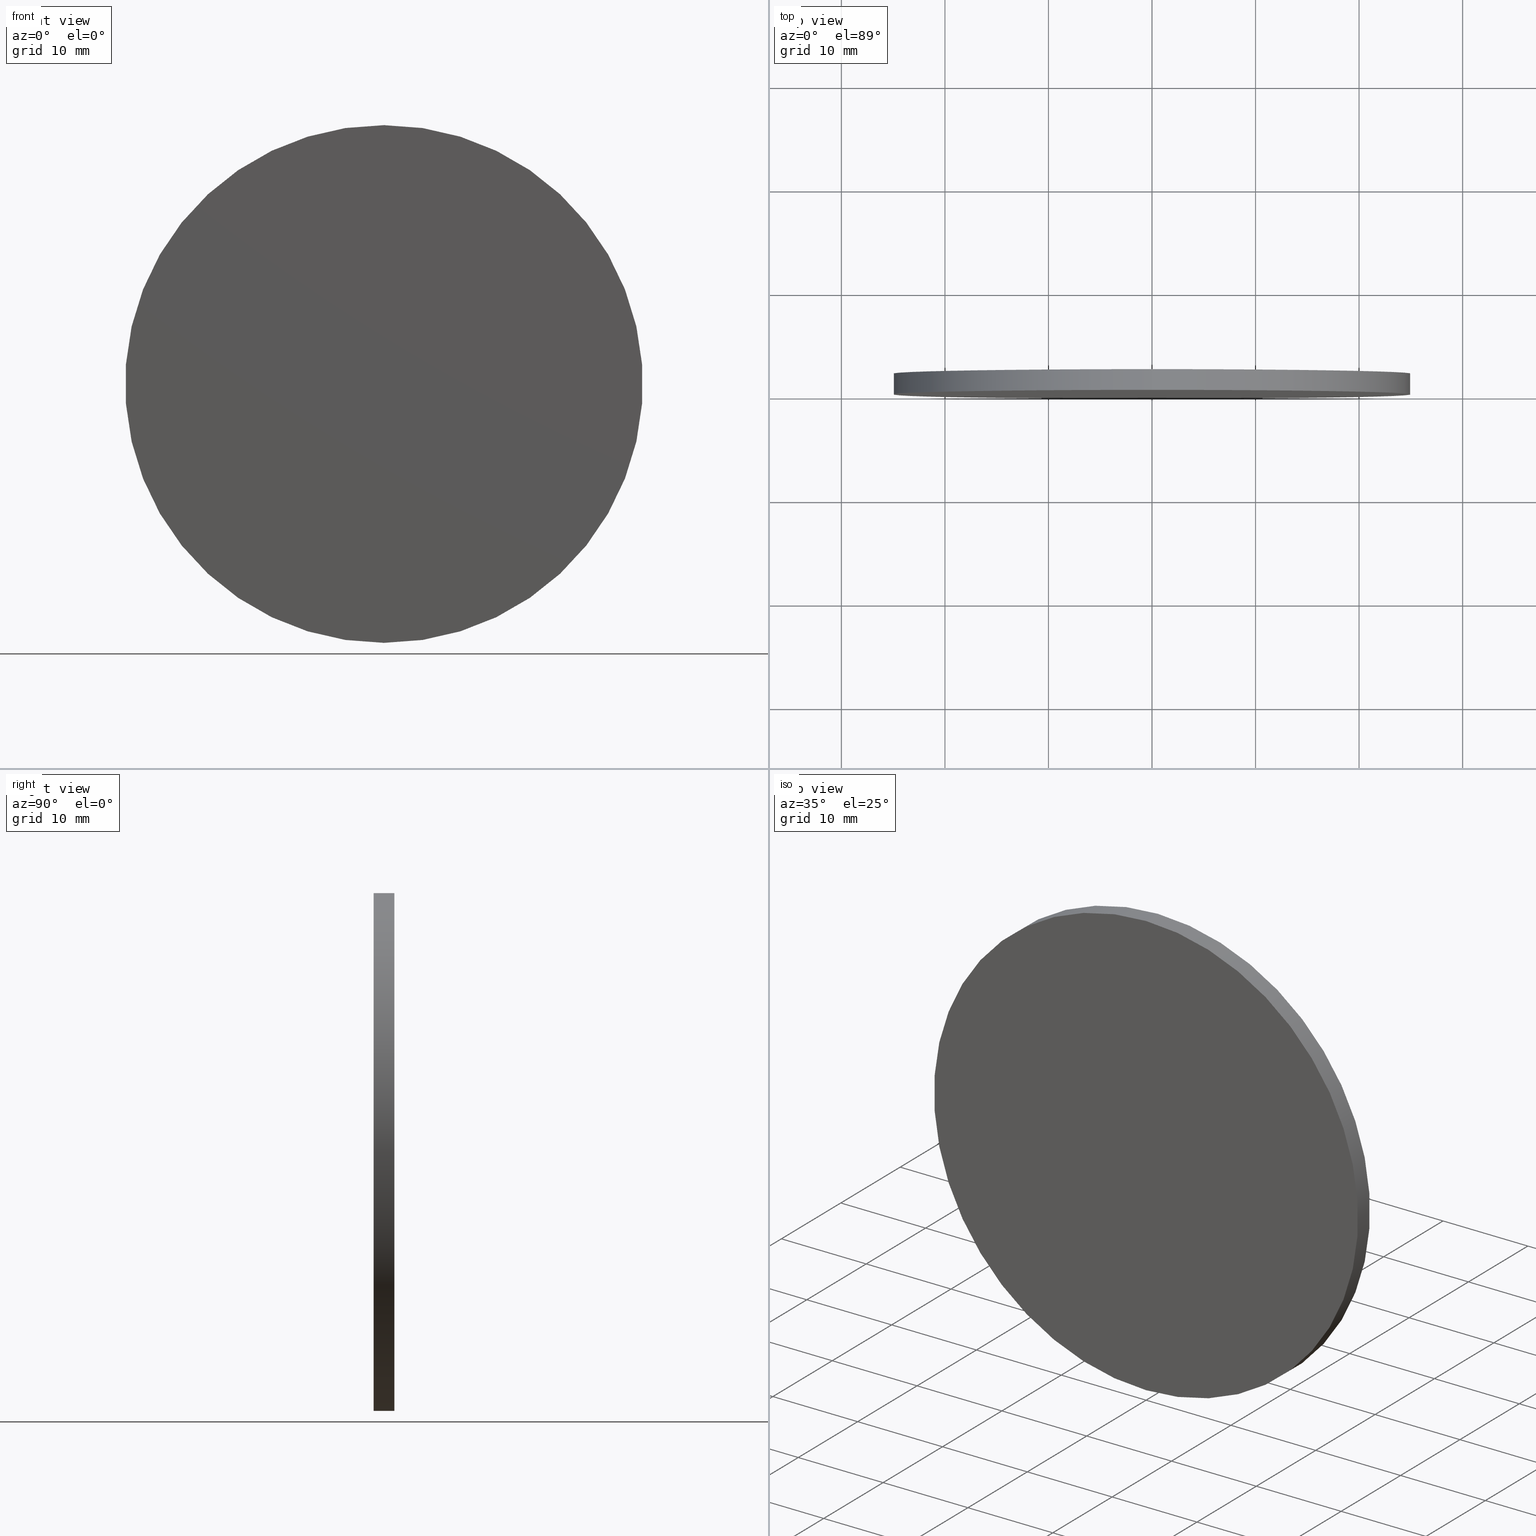
[diagram: canonical four-view strip — front | top / right | iso, engineering-drawing reading convention]
A machine part, canonical four-view strip (front | top / right | iso — engineering-drawing reading convention). The complete STEP part file that produces these views, byte-faithful:
ISO-10303-21;
HEADER;
FILE_DESCRIPTION (( 'STEP AP214' ),
    '1' );
FILE_NAME ('208558.STEP',
    '2019-07-25T01:54:44',
    ( 'user' ),
    ( '΢���й�' ),
    'SwSTEP 2.0',
    'SolidWorks 2016',
    '' );
FILE_SCHEMA (( 'AUTOMOTIVE_DESIGN' ));
ENDSEC;

DATA;
#1 = DIRECTION ( 'NONE',  ( 0.0000000000000000000, 1.000000000000000000, 0.0000000000000000000 ) ) ;
#2 = EDGE_CURVE ( 'NONE', #63, #132, #8, .T. ) ;
#3 = DIRECTION ( 'NONE',  ( 0.0000000000000000000, 1.000000000000000000, 0.0000000000000000000 ) ) ;
#4 = APPLICATION_CONTEXT ( 'automotive_design' ) ;
#5 =( GEOMETRIC_REPRESENTATION_CONTEXT ( 3 ) GLOBAL_UNCERTAINTY_ASSIGNED_CONTEXT ( ( #43 ) ) GLOBAL_UNIT_ASSIGNED_CONTEXT ( ( #118, #107, #41 ) ) REPRESENTATION_CONTEXT ( 'NONE', 'WORKASPACE' ) );
#6 = FACE_OUTER_BOUND ( 'NONE', #15, .T. ) ;
#7 = AXIS2_PLACEMENT_3D ( 'NONE', #38, #114, #99 ) ;
#8 = CIRCLE ( 'NONE', #117, 25.00000000000000000 ) ;
#9 = ADVANCED_BREP_SHAPE_REPRESENTATION ( '208558', ( #74, #44 ), #130 ) ;
#10 = CARTESIAN_POINT ( 'NONE',  ( 3.061616997868383000E-015, 2.000000000000000000, 25.00000000000000000 ) ) ;
#11 = DIRECTION ( 'NONE',  ( 0.0000000000000000000, 0.0000000000000000000, 1.000000000000000000 ) ) ;
#12 = SURFACE_STYLE_USAGE ( .BOTH. , #78 ) ;
#13 = DIRECTION ( 'NONE',  ( -0.0000000000000000000, -1.000000000000000000, -0.0000000000000000000 ) ) ;
#14 = EDGE_LOOP ( 'NONE', ( #16, #61, #79, #96 ) ) ;
#15 = EDGE_LOOP ( 'NONE', ( #42, #98 ) ) ;
#16 = ORIENTED_EDGE ( 'NONE', *, *, #134, .F. ) ;
#17 = CARTESIAN_POINT ( 'NONE',  ( 0.0000000000000000000, 0.0000000000000000000, 0.0000000000000000000 ) ) ;
#18 = FILL_AREA_STYLE ('',( #26 ) ) ;
#19 = CARTESIAN_POINT ( 'NONE',  ( 3.061616997868383000E-015, 0.0000000000000000000, 25.00000000000000000 ) ) ;
#20 = EDGE_LOOP ( 'NONE', ( #135, #37, #93, #105 ) ) ;
#21 = PRODUCT_DEFINITION ( 'δ֪', '', #53, #73 ) ;
#22 = AXIS2_PLACEMENT_3D ( 'NONE', #30, #103, #27 ) ;
#23 = CLOSED_SHELL ( 'NONE', ( #72, #29, #68, #33 ) ) ;
#24 = COLOUR_RGB ( '',1.000000000000000000, 1.000000000000000000, 1.000000000000000000 ) ;
#25 = PRODUCT_RELATED_PRODUCT_CATEGORY ( 'part', '', ( #35 ) ) ;
#26 = FILL_AREA_STYLE_COLOUR ( '', #24 ) ;
#27 = DIRECTION ( 'NONE',  ( 0.0000000000000000000, -0.0000000000000000000, 1.000000000000000000 ) ) ;
#28 = CARTESIAN_POINT ( 'NONE',  ( 0.0000000000000000000, 2.000000000000000000, 0.0000000000000000000 ) ) ;
#29 = ADVANCED_FACE ( 'NONE', ( #120 ), #121, .T. ) ;
#30 = CARTESIAN_POINT ( 'NONE',  ( 0.0000000000000000000, 2.000000000000000000, 0.0000000000000000000 ) ) ;
#31 = COLOUR_RGB ( '',1.000000000000000000, 1.000000000000000000, 1.000000000000000000 ) ;
#32 = LINE ( 'NONE', #128, #113 ) ;
#33 = ADVANCED_FACE ( 'NONE', ( #137 ), #101, .F. ) ;
#34 = EDGE_CURVE ( 'NONE', #125, #111, #59, .T. ) ;
#35 = PRODUCT ( '208558', '208558', '', ( #58 ) ) ;
#36 = PRODUCT_DEFINITION_SHAPE ( 'NONE', 'NONE',  #21 ) ;
#37 = ORIENTED_EDGE ( 'NONE', *, *, #134, .T. ) ;
#38 = CARTESIAN_POINT ( 'NONE',  ( 0.0000000000000000000, 0.0000000000000000000, 0.0000000000000000000 ) ) ;
#39 = CARTESIAN_POINT ( 'NONE',  ( 0.0000000000000000000, 0.0000000000000000000, 0.0000000000000000000 ) ) ;
#40 =( NAMED_UNIT ( * ) PLANE_ANGLE_UNIT ( ) SI_UNIT ( $, .RADIAN. ) );
#41 =( NAMED_UNIT ( * ) SI_UNIT ( $, .STERADIAN. ) SOLID_ANGLE_UNIT ( ) );
#42 = ORIENTED_EDGE ( 'NONE', *, *, #34, .T. ) ;
#43 = UNCERTAINTY_MEASURE_WITH_UNIT (LENGTH_MEASURE( 1.000000000000000100E-005 ), #118, 'distance_accuracy_value', 'NONE');
#44 = AXIS2_PLACEMENT_3D ( 'NONE', #39, #50, #131 ) ;
#45 = ORIENTED_EDGE ( 'NONE', *, *, #2, .F. ) ;
#46 = DIRECTION ( 'NONE',  ( -0.0000000000000000000, -1.000000000000000000, -0.0000000000000000000 ) ) ;
#47 = DIRECTION ( 'NONE',  ( -0.0000000000000000000, -1.000000000000000000, -0.0000000000000000000 ) ) ;
#48 =( LENGTH_UNIT ( ) NAMED_UNIT ( * ) SI_UNIT ( .MILLI., .METRE. ) );
#49 = DIRECTION ( 'NONE',  ( 0.0000000000000000000, 0.0000000000000000000, -1.000000000000000000 ) ) ;
#50 = DIRECTION ( 'NONE',  ( 0.0000000000000000000, 0.0000000000000000000, 1.000000000000000000 ) ) ;
#51 = CYLINDRICAL_SURFACE ( 'NONE', #112, 25.00000000000000000 ) ;
#52 = MECHANICAL_DESIGN_GEOMETRIC_PRESENTATION_REPRESENTATION (  '', ( #106 ), #5 ) ;
#53 = PRODUCT_DEFINITION_FORMATION_WITH_SPECIFIED_SOURCE ( '�κ�', '', #35, .NOT_KNOWN. ) ;
#54 = PRESENTATION_LAYER_ASSIGNMENT (  '', '', ( #62 ) ) ;
#55 = SURFACE_STYLE_USAGE ( .BOTH. , #127 ) ;
#56 = DIRECTION ( 'NONE',  ( 0.0000000000000000000, -0.0000000000000000000, 1.000000000000000000 ) ) ;
#57 =( LENGTH_UNIT ( ) NAMED_UNIT ( * ) SI_UNIT ( .MILLI., .METRE. ) );
#58 = PRODUCT_CONTEXT ( 'NONE', #92, 'mechanical' ) ;
#59 = CIRCLE ( 'NONE', #109, 25.00000000000000000 ) ;
#60 = EDGE_CURVE ( 'NONE', #125, #132, #32, .T. ) ;
#61 = ORIENTED_EDGE ( 'NONE', *, *, #34, .F. ) ;
#62 = STYLED_ITEM ( 'NONE', ( #110 ), #74 ) ;
#63 = VERTEX_POINT ( 'NONE', #19 ) ;
#64 = CARTESIAN_POINT ( 'NONE',  ( 0.0000000000000000000, 2.000000000000000000, 0.0000000000000000000 ) ) ;
#65 = DIRECTION ( 'NONE',  ( 0.0000000000000000000, 0.0000000000000000000, 1.000000000000000000 ) ) ;
#66 = FILL_AREA_STYLE_COLOUR ( '', #31 ) ;
#67 = AXIS2_PLACEMENT_3D ( 'NONE', #126, #75, #65 ) ;
#68 = ADVANCED_FACE ( 'NONE', ( #6 ), #80, .T. ) ;
#69 = DIRECTION ( 'NONE',  ( 0.0000000000000000000, 0.0000000000000000000, 1.000000000000000000 ) ) ;
#70 = APPLICATION_PROTOCOL_DEFINITION ( 'draft international standard', 'automotive_design', 1998, #4 ) ;
#71 = CIRCLE ( 'NONE', #67, 25.00000000000000000 ) ;
#72 = ADVANCED_FACE ( 'NONE', ( #86 ), #51, .T. ) ;
#73 = PRODUCT_DEFINITION_CONTEXT ( 'detailed design', #4, 'design' ) ;
#74 = MANIFOLD_SOLID_BREP ( '͹̨-����1', #23 ) ;
#75 = DIRECTION ( 'NONE',  ( 0.0000000000000000000, 1.000000000000000000, 0.0000000000000000000 ) ) ;
#76 = SURFACE_STYLE_FILL_AREA ( #140 ) ;
#77 = DIRECTION ( 'NONE',  ( 0.0000000000000000000, 1.000000000000000000, 0.0000000000000000000 ) ) ;
#78 = SURFACE_SIDE_STYLE ('',( #136 ) ) ;
#79 = ORIENTED_EDGE ( 'NONE', *, *, #60, .T. ) ;
#80 = PLANE ( 'NONE',  #22 ) ;
#81 = CIRCLE ( 'NONE', #7, 25.00000000000000000 ) ;
#82 = AXIS2_PLACEMENT_3D ( 'NONE', #91, #1, #56 ) ;
#83 = ORIENTED_EDGE ( 'NONE', *, *, #94, .F. ) ;
#84 = PRESENTATION_STYLE_ASSIGNMENT (( #12 ) ) ;
#85 =( GEOMETRIC_REPRESENTATION_CONTEXT ( 3 ) GLOBAL_UNCERTAINTY_ASSIGNED_CONTEXT ( ( #122 ) ) GLOBAL_UNIT_ASSIGNED_CONTEXT ( ( #48, #40, #129 ) ) REPRESENTATION_CONTEXT ( 'NONE', 'WORKASPACE' ) );
#86 = FACE_OUTER_BOUND ( 'NONE', #20, .T. ) ;
#87 = DIRECTION ( 'NONE',  ( -0.0000000000000000000, -1.000000000000000000, -0.0000000000000000000 ) ) ;
#88 = CARTESIAN_POINT ( 'NONE',  ( 0.0000000000000000000, 2.000000000000000000, 0.0000000000000000000 ) ) ;
#89 = EDGE_LOOP ( 'NONE', ( #83, #45 ) ) ;
#90 = AXIS2_PLACEMENT_3D ( 'NONE', #28, #87, #102 ) ;
#91 = CARTESIAN_POINT ( 'NONE',  ( 0.0000000000000000000, 0.0000000000000000000, 0.0000000000000000000 ) ) ;
#92 = APPLICATION_CONTEXT ( 'automotive_design' ) ;
#93 = ORIENTED_EDGE ( 'NONE', *, *, #2, .T. ) ;
#94 = EDGE_CURVE ( 'NONE', #132, #63, #81, .T. ) ;
#95 = PRESENTATION_LAYER_ASSIGNMENT (  '', '', ( #106 ) ) ;
#96 = ORIENTED_EDGE ( 'NONE', *, *, #94, .T. ) ;
#97 = SHAPE_DEFINITION_REPRESENTATION ( #36, #9 ) ;
#98 = ORIENTED_EDGE ( 'NONE', *, *, #124, .T. ) ;
#99 = DIRECTION ( 'NONE',  ( 0.0000000000000000000, 0.0000000000000000000, 1.000000000000000000 ) ) ;
#100 = CARTESIAN_POINT ( 'NONE',  ( 0.0000000000000000000, 0.0000000000000000000, -25.00000000000000000 ) ) ;
#101 = PLANE ( 'NONE',  #82 ) ;
#102 = DIRECTION ( 'NONE',  ( 0.0000000000000000000, 0.0000000000000000000, -1.000000000000000000 ) ) ;
#103 = DIRECTION ( 'NONE',  ( 0.0000000000000000000, 1.000000000000000000, 0.0000000000000000000 ) ) ;
#104 = APPLICATION_PROTOCOL_DEFINITION ( 'draft international standard', 'automotive_design', 1998, #92 ) ;
#105 = ORIENTED_EDGE ( 'NONE', *, *, #60, .F. ) ;
#106 = STYLED_ITEM ( 'NONE', ( #84 ), #9 ) ;
#107 =( NAMED_UNIT ( * ) PLANE_ANGLE_UNIT ( ) SI_UNIT ( $, .RADIAN. ) );
#108 = UNCERTAINTY_MEASURE_WITH_UNIT (LENGTH_MEASURE( 1.000000000000000100E-005 ), #57, 'distance_accuracy_value', 'NONE');
#109 = AXIS2_PLACEMENT_3D ( 'NONE', #64, #3, #69 ) ;
#110 = PRESENTATION_STYLE_ASSIGNMENT (( #55 ) ) ;
#111 = VERTEX_POINT ( 'NONE', #10 ) ;
#112 = AXIS2_PLACEMENT_3D ( 'NONE', #88, #13, #49 ) ;
#113 = VECTOR ( 'NONE', #47, 1000.000000000000000 ) ;
#114 = DIRECTION ( 'NONE',  ( 0.0000000000000000000, 1.000000000000000000, 0.0000000000000000000 ) ) ;
#115 =( NAMED_UNIT ( * ) PLANE_ANGLE_UNIT ( ) SI_UNIT ( $, .RADIAN. ) );
#116 = CARTESIAN_POINT ( 'NONE',  ( 0.0000000000000000000, 2.000000000000000000, -25.00000000000000000 ) ) ;
#117 = AXIS2_PLACEMENT_3D ( 'NONE', #17, #77, #11 ) ;
#118 =( LENGTH_UNIT ( ) NAMED_UNIT ( * ) SI_UNIT ( .MILLI., .METRE. ) );
#119 =( NAMED_UNIT ( * ) SI_UNIT ( $, .STERADIAN. ) SOLID_ANGLE_UNIT ( ) );
#120 = FACE_OUTER_BOUND ( 'NONE', #14, .T. ) ;
#121 = CYLINDRICAL_SURFACE ( 'NONE', #90, 25.00000000000000000 ) ;
#122 = UNCERTAINTY_MEASURE_WITH_UNIT (LENGTH_MEASURE( 1.000000000000000100E-005 ), #48, 'distance_accuracy_value', 'NONE');
#123 = LINE ( 'NONE', #139, #133 ) ;
#124 = EDGE_CURVE ( 'NONE', #111, #125, #71, .T. ) ;
#125 = VERTEX_POINT ( 'NONE', #116 ) ;
#126 = CARTESIAN_POINT ( 'NONE',  ( 0.0000000000000000000, 2.000000000000000000, 0.0000000000000000000 ) ) ;
#127 = SURFACE_SIDE_STYLE ('',( #76 ) ) ;
#128 = CARTESIAN_POINT ( 'NONE',  ( 0.0000000000000000000, 2.000000000000000000, -25.00000000000000000 ) ) ;
#129 =( NAMED_UNIT ( * ) SI_UNIT ( $, .STERADIAN. ) SOLID_ANGLE_UNIT ( ) );
#130 =( GEOMETRIC_REPRESENTATION_CONTEXT ( 3 ) GLOBAL_UNCERTAINTY_ASSIGNED_CONTEXT ( ( #108 ) ) GLOBAL_UNIT_ASSIGNED_CONTEXT ( ( #57, #115, #119 ) ) REPRESENTATION_CONTEXT ( 'NONE', 'WORKASPACE' ) );
#131 = DIRECTION ( 'NONE',  ( 1.000000000000000000, 0.0000000000000000000, 0.0000000000000000000 ) ) ;
#132 = VERTEX_POINT ( 'NONE', #100 ) ;
#133 = VECTOR ( 'NONE', #46, 1000.000000000000000 ) ;
#134 = EDGE_CURVE ( 'NONE', #111, #63, #123, .T. ) ;
#135 = ORIENTED_EDGE ( 'NONE', *, *, #124, .F. ) ;
#136 = SURFACE_STYLE_FILL_AREA ( #18 ) ;
#137 = FACE_OUTER_BOUND ( 'NONE', #89, .T. ) ;
#138 = MECHANICAL_DESIGN_GEOMETRIC_PRESENTATION_REPRESENTATION (  '', ( #62 ), #85 ) ;
#139 = CARTESIAN_POINT ( 'NONE',  ( 3.061616997868383000E-015, 2.000000000000000000, 25.00000000000000000 ) ) ;
#140 = FILL_AREA_STYLE ('',( #66 ) ) ;
ENDSEC;
END-ISO-10303-21;
